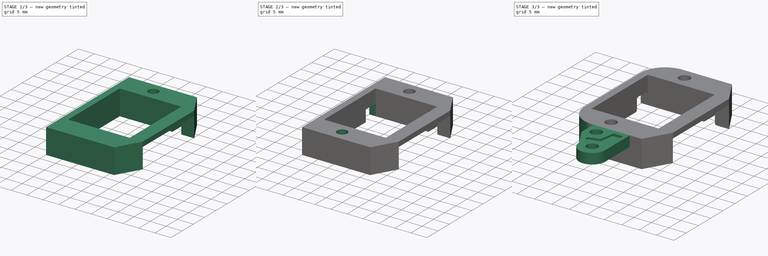
[diagram: build sequence overview — one tinted view per stage of 3, left to right]
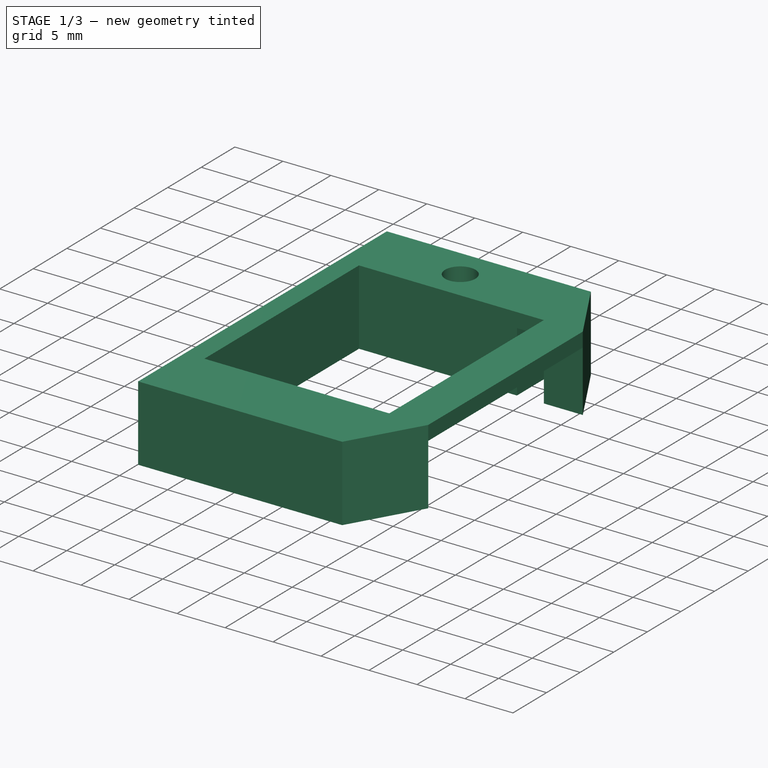
[diagram: stage 1 of 3 — iso view after this stage's code; geometry added in this stage tinted green]
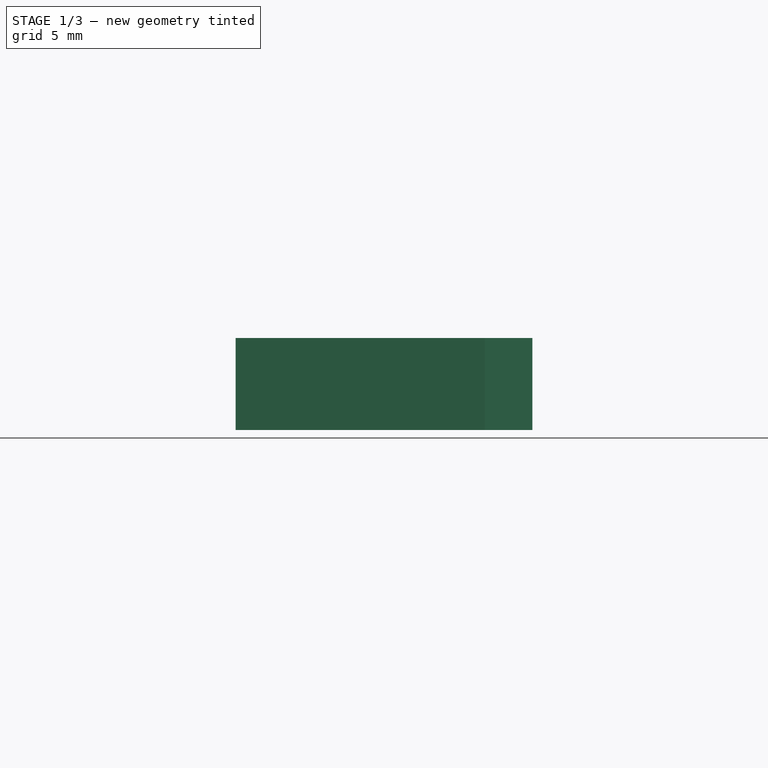
[diagram: stage 1 of 3 — front view after this stage's code; geometry added in this stage tinted green]
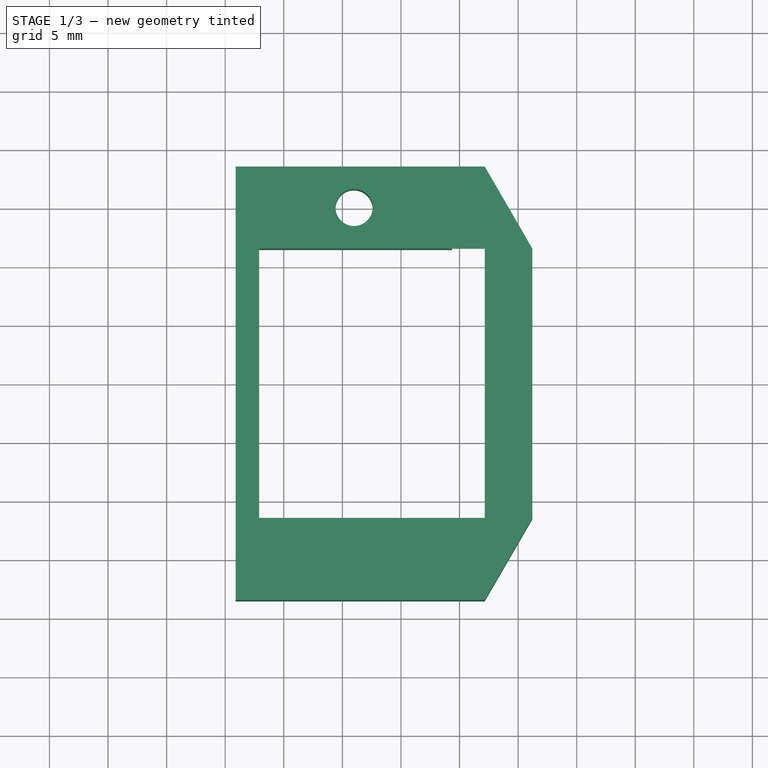
[diagram: stage 1 of 3 — top view after this stage's code; geometry added in this stage tinted green]
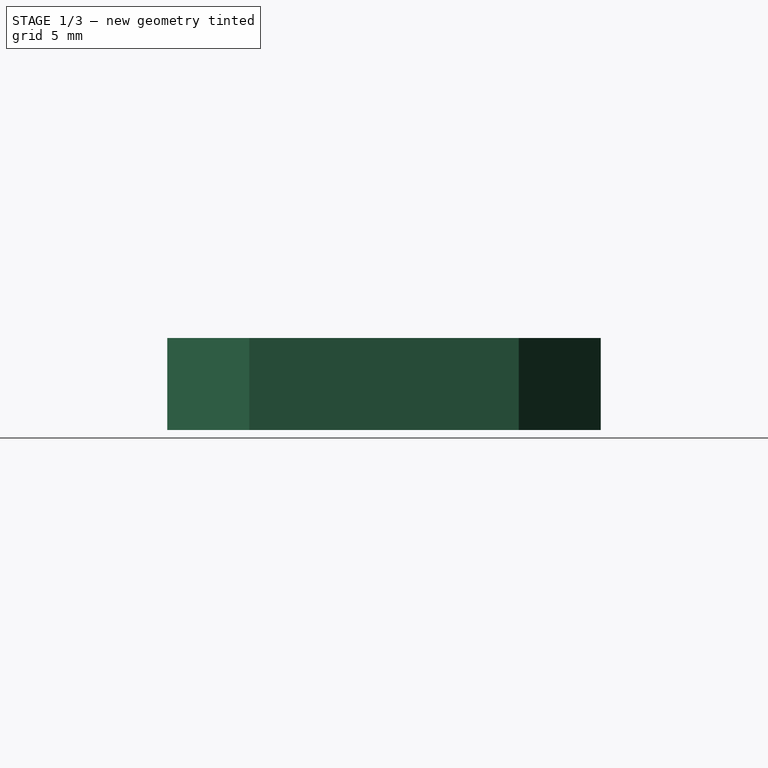
[diagram: stage 1 of 3 — right view after this stage's code; geometry added in this stage tinted green]
FCSTD DOCUMENT  (FreeCAD 0.20R29177 +426 (Git))
Label: l_sg90_holder
License: All rights reserved
LicenseURL: http://en.wikipedia.org/wiki/All_rights_reserved
objects: Sketcher::SketchObject×5, PartDesign::Pad×3, Spreadsheet::Sheet×2, PartDesign::Pocket×2, PartDesign::Fillet×2, PartDesign::Mirrored×1, PartDesign::Body×1
note: 21 computed .brp shape members not serialized (recipe doc carries the construction recipe); baked Part::Feature solids carry a one-line shape summary decoded from their .brp

FEATURE [Spreadsheet::Sheet] Spreadsheet  label="servo_data"
  cells = A1=Name; B1=Value; A2=sg90_base_xlen; B2(sg90_base_xlen)==23.81mm; E2=xlen is the base of the servo, from its back up to the box part; A3=sg90_base_ylen; B3(sg90_base_ylen)==22.6mm; E3=ylen is the box part from the bot of box to top (around where wire is mounted_; A4=sg90_base_zlen; B4(sg90_base_zlen)==12.3mm; E4=zlen is across; A5=sg90_base2lip_x; B5(sg90_base2lip_x)==16.66mm; E5=put the sg90 on its longest fattest side. That's how the xlen ylen and zlen are found; A6=sg90_lip_xlen; B6(sg90_lip_xlen)==2.4mm; A7=sg90_lip_ylen; B7(sg90_lip_ylen)==5mm; A8=sg90_lip2front_x; B8(sg90_lip2front_x)==4.06mm; A9=sg90_space; B9(sg90_space)==0.4mm; A10=sg90_hold_top_wall_thick; B10(sg90_hold_top_wall_thick)==2mm; A11=sg90_cable_thick; B11(sg90_cable_thick)==3.6mm; A12=sg90_hold_base_wall_thick; B12(sg90_hold_base_wall_thick)==1.5mm; A13=sg90_hold_xtra_grip_len; B13(sg90_hold_xtra_grip_len)==10mm; A14=sg90_hold_xtra_grip_thick; B14(sg90_hold_xtra_grip_thick)==3mm; A16=sg90_hold_gear2box_end; B16(sg90_hold_gear2box_end)==25mm
FEATURE [Sketcher::SketchObject] Sketch
  FullyConstrained = true
  MapMode = 5
  Support = -> [XY_Plane]
  expr: Constraints[10] = <<servo_data>>.sg90_base_xlen + <<servo_data>>.sg90_space
  expr: Constraints[11] = <<servo_data>>.sg90_base_ylen + <<servo_data>>.sg90_space
  expr: Constraints[18] = <<servo_data>>.sg90_base2lip_x - <<servo_data>>.sg90_space / 2
  expr: Constraints[46] = <<servo_data>>.sg90_lip_xlen + <<servo_data>>.sg90_space
  expr: Constraints[47] = <<servo_data>>.sg90_lip_ylen
  expr: Constraints[57] = Spreadsheet.sg90_hold_top_wall_thick
  expr: Constraints[61] = <<servo_data>>.sg90_hold_top_wall_thick
  expr: Constraints[65] = <<servo_data>>.sg90_hold_top_wall_thick
  expr: Constraints[79] = <<servo_data>>.sg90_lip2front_x
  sketch-geometry (30):
    g0: LineSegment StartX=-12.105 StartY=11.5 StartZ=0 EndX=-12.105 EndY=-11.5 EndZ=0
    g1: LineSegment StartX=-12.105 StartY=-11.5 StartZ=0 EndX=12.105 EndY=-11.5 EndZ=0
    g2: LineSegment StartX=12.105 StartY=-11.5 StartZ=0 EndX=12.105 EndY=11.5 EndZ=0
    g3: LineSegment StartX=12.105 StartY=11.5 StartZ=0 EndX=-12.105 EndY=11.5 EndZ=0
    g4: GeomPoint X=0 Y=0 Z=0
    g5: LineSegment StartX=4.355 StartY=11.5 StartZ=0 EndX=4.355 EndY=-11.5 EndZ=0
    g6: LineSegment StartX=4.355 StartY=0 StartZ=0 EndX=-12.105 EndY=0 EndZ=0
    g7: LineSegment StartX=4.355 StartY=-11.5 StartZ=0 EndX=-12.105 EndY=-11.5 EndZ=0
    g8: LineSegment StartX=-12.105 StartY=-11.5 StartZ=0 EndX=-12.105 EndY=11.5 EndZ=0
    g9: LineSegment StartX=-12.105 StartY=11.5 StartZ=0 EndX=4.355 EndY=11.5 EndZ=0
    g10: LineSegment StartX=4.355 StartY=11.5 StartZ=0 EndX=4.355 EndY=16.5 EndZ=0
    g11: LineSegment StartX=4.355 StartY=16.5 StartZ=0 EndX=7.155 EndY=16.5 EndZ=0
    g12: LineSegment StartX=7.155 StartY=16.5 StartZ=0 EndX=7.155 EndY=11.5 EndZ=0
    g13: LineSegment StartX=4.355 StartY=-11.5 StartZ=0 EndX=4.355 EndY=-16.5 EndZ=0
    g14: LineSegment StartX=4.355 StartY=-16.5 StartZ=0 EndX=7.155 EndY=-16.5 EndZ=0
    g15: LineSegment StartX=7.155 StartY=-16.5 StartZ=0 EndX=7.155 EndY=-11.5 EndZ=0
    g16: LineSegment StartX=7.155 StartY=11.5 StartZ=0 EndX=7.155 EndY=-11.5 EndZ=0
    g17: LineSegment StartX=4.355 StartY=0 StartZ=0 EndX=7.155 EndY=0 EndZ=0
    g18: LineSegment StartX=7.155 StartY=-18.5 StartZ=0 EndX=-14.105 EndY=-18.5 EndZ=0
    g19: LineSegment StartX=-14.105 StartY=18.5 StartZ=0 EndX=7.155 EndY=18.5 EndZ=0
    g20: LineSegment StartX=7.155 StartY=18.5 StartZ=0 EndX=7.155 EndY=16.5 EndZ=0
    g21: LineSegment StartX=7.155 StartY=-16.5 StartZ=0 EndX=7.155 EndY=-18.5 EndZ=0
    g22: LineSegment StartX=-14.105 StartY=18.5 StartZ=0 EndX=-14.105 EndY=-18.5 EndZ=0
    g23: LineSegment StartX=-12.105 StartY=0 StartZ=0 EndX=-14.105 EndY=0 EndZ=0
    g24: LineSegment StartX=-12.105 StartY=-11.5 StartZ=0 EndX=-12.105 EndY=-18.5 EndZ=0
    g25: LineSegment StartX=11.215 StartY=11.5 StartZ=0 EndX=7.155 EndY=11.5 EndZ=0
    g26: LineSegment StartX=11.215 StartY=-11.5 StartZ=0 EndX=7.155 EndY=-11.5 EndZ=0
    g27: LineSegment StartX=11.215 StartY=11.5 StartZ=0 EndX=11.215 EndY=-11.5 EndZ=0
    g28: LineSegment StartX=7.155 StartY=18.5 StartZ=0 EndX=11.215 EndY=11.5 EndZ=0
    g29: LineSegment StartX=11.215 StartY=-11.5 StartZ=0 EndX=7.155 EndY=-18.5 EndZ=0
  constraints (87):
    c: Coincident(g0,g1)
    c: Coincident(g1,g2)
    c: Coincident(g2,g3)
    c: Coincident(g3,g0)
    c: Horizontal(g1)
    c: Horizontal(g3)
    c: Vertical(g0)
    c: Vertical(g2)
    c: Symmetric(g1,g0,g4)
    c: Coincident(g4,g-1)
    c: DistanceX(g1,g1) = 24.21
    c: DistanceY(g2,g2) = 23
    c: PointOnObject(g5,g1)
    c: Vertical(g5)
    c: PointOnObject(g6,g5)
    c: PointOnObject(g6,g0)
    c: Horizontal(g6)
    c: PointOnObject(g6,g-1)
    c: DistanceX(g6,g6) = 16.46
    c: Coincident(g5,g7)
    c: Coincident(g7,g0)
    c: Coincident(g7,g8)
    c: Coincident(g8,g0)
    c: Coincident(g8,g9)
    c: Coincident(g9,g5)
    c: Coincident(g9,g10)
    c: Vertical(g10)
    c: Coincident(g10,g11)
    c: Horizontal(g11)
    c: Coincident(g11,g12)
    c: PointOnObject(g12,g3)
    c: Vertical(g12)
    c: Coincident(g7,g13)
    c: Vertical(g13)
    c: Coincident(g13,g14)
    c: Horizontal(g14)
    c: Coincident(g14,g15)
    c: PointOnObject(g15,g1)
    c: Vertical(g15)
    c: Coincident(g16,g12)
    c: Coincident(g16,g15)
    c: Vertical(g16)
    c: Coincident(g17,g6)
    c: PointOnObject(g17,g16)
    c: Horizontal(g17)
    c: Equal(g13,g10)
    c: DistanceX(g17,g17) = 2.8
    c: DistanceY(g10,g10) = 5
    c: Horizontal(g19)
    c: Coincident(g20,g11)
    c: Coincident(g21,g14)
    c: Vertical(g21)
    c: Vertical(g20)
    c: Horizontal(g18)
    c: Coincident(g22,g19)
    c: Coincident(g22,g18)
    c: Vertical(g22)
    c: DistanceY(g20,g20) = 2
    c: Coincident(g23,g6)
    c: PointOnObject(g23,g22)
    c: Horizontal(g23)
    c: DistanceX(g23,g23) = 2
    c: Coincident(g24,g7)
    c: PointOnObject(g24,g18)
    c: Vertical(g24)
    c: DistanceY(g21,g21) = 2
    c: DistanceY(g24,g24) = 7
    c: DistanceY(g22,g22) = 37  'outside_ylen'
    c: DistanceY(g12,g19) = 7  'curve_ylen'
    c: DistanceX(g23,g4) = 14.105  'back_wall_xlen_offset'
    c: Coincident(g19,g20)
    c: PointOnObject(g9,g3)
    c: Coincident(g18,g21)
    c: DistanceX(g15,g1) = 4.95  'front_pad'
    c: PointOnObject(g25,g3)
    c: PointOnObject(g26,g1)
    c: Coincident(g25,g12)
    c: Coincident(g26,g15)
    c: Vertical(g27)
    c: DistanceX(g25,g25) = 4.06
    c: Coincident(g25,g27)
    c: Coincident(g26,g27)
    c: Coincident(g28,g19)
    c: Coincident(g28,g25)
    c: Coincident(g29,g26)
    c: Coincident(g29,g18)
    c: DistanceX(g19,g25) = 25.32  'outside_xlen'
FEATURE [Spreadsheet::Sheet] Spreadsheet001  label="screw_data"
  cells = A1=Name; B1=Value; A2=m3_head_dia; B2(m3_head_dia)==5.5mm; A3=m3_screw_dia; B3(m3_screw_dia)==2.96mm; A5=m3_space; B5(m3_space)==0.2mm
FEATURE [PartDesign::Pad] Pad
  Direction = (0,0,1)
  Length = 6.35
  Length2 = 10
  Profile = -> Sketch
  ReferenceAxis = -> Sketch [N_Axis]
  Type = 0
  expr: Length = <<servo_data>>.sg90_base_zlen / 2 + <<servo_data>>.sg90_space / 2
FEATURE [Sketcher::SketchObject] Sketch001  label="side_panel"
  AttachmentOffset = pos=(0,0,6.35) rot=(0,0,1;0rad)
  FullyConstrained = true
  MapMode = 5
  Placement = pos=(0,0,6.35) rot=(0,0,1;0rad)
  Support = -> [XY_Plane]
  expr: .AttachmentOffset.Base.z = <<Pad>>.Length
  expr: Constraints[13] = Sketch.Constraints.outside_xlen
  expr: Constraints[28] = <<Sketch>>.Constraints.curve_ylen
  expr: Constraints[2] = Sketch.Constraints.back_wall_xlen_offset
  expr: Constraints[30] = <<servo_data>>.sg90_lip2front_x
  expr: Constraints[46] = <<servo_data>>.sg90_hold_top_wall_thick
  expr: Constraints[8] = Sketch.Constraints.outside_ylen
  sketch-geometry (17):
    g0: LineSegment StartX=0 StartY=0 StartZ=0 EndX=-14.105 EndY=0 EndZ=0
    g1: LineSegment StartX=-14.105 StartY=0 StartZ=0 EndX=-14.105 EndY=18.5 EndZ=0
    g2: LineSegment StartX=-14.105 StartY=0 StartZ=0 EndX=-14.105 EndY=-18.5 EndZ=0
    g3: LineSegment StartX=-14.105 StartY=18.5 StartZ=0 EndX=7.155 EndY=18.5 EndZ=0
    g4: LineSegment StartX=-14.105 StartY=0 StartZ=0 EndX=11.215 EndY=0 EndZ=0
    g5: LineSegment StartX=-14.105 StartY=-18.5 StartZ=0 EndX=7.155 EndY=-18.5 EndZ=0
    g6: LineSegment StartX=7.155 StartY=18.5 StartZ=0 EndX=7.155 EndY=-18.5 EndZ=0
    g7: LineSegment StartX=7.155 StartY=18.5 StartZ=0 EndX=11.215 EndY=11.5 EndZ=0
    g8: LineSegment StartX=7.155 StartY=-18.5 StartZ=0 EndX=11.215 EndY=-11.5 EndZ=0
    g9: LineSegment StartX=11.215 StartY=-11.5 StartZ=0 EndX=11.215 EndY=11.5 EndZ=0
    g10: LineSegment StartX=11.215 StartY=11.5 StartZ=0 EndX=7.155 EndY=11.5 EndZ=0
    g11: LineSegment StartX=7.155 StartY=11.5 StartZ=0 EndX=-12.105 EndY=11.5 EndZ=0
    g12: LineSegment StartX=-12.105 StartY=11.5 StartZ=0 EndX=-12.105 EndY=-11.5 EndZ=0
    g13: LineSegment StartX=-12.105 StartY=-11.5 StartZ=0 EndX=7.155 EndY=-11.5 EndZ=0
    g14: LineSegment StartX=7.155 StartY=-11.5 StartZ=0 EndX=7.155 EndY=11.5 EndZ=0
    g15: LineSegment StartX=7.155 StartY=-11.5 StartZ=0 EndX=11.215 EndY=-11.5 EndZ=0
    g16: LineSegment StartX=-14.105 StartY=0 StartZ=0 EndX=-12.105 EndY=0 EndZ=0
  constraints (47):
    c: Coincident(g0,g-1)
    c: PointOnObject(g0,g-1)
    c: DistanceX(g0,g0) = 14.105
    c: Coincident(g0,g1)
    c: Vertical(g1)
    c: Coincident(g1,g2)
    c: Vertical(g2)
    c: Equal(g2,g1)
    c: DistanceY(g2,g1) = 37
    c: Coincident(g3,g1)
    c: Horizontal(g3)
    c: Coincident(g4,g1)
    c: PointOnObject(g4,g-1)
    c: DistanceX(g4,g4) = 25.32
    c: Coincident(g5,g2)
    c: Horizontal(g5)
    c: Coincident(g6,g3)
    c: Coincident(g6,g5)
    c: Vertical(g6)
    c: Coincident(g7,g3)
    c: Coincident(g8,g5)
    c: Coincident(g9,g8)
    c: Coincident(g9,g7)
    c: Vertical(g9)
    c: Equal(g7,g8)
    c: Coincident(g10,g7)
    c: PointOnObject(g10,g6)
    c: Horizontal(g10)
    c: DistanceY(g10,g3) = 7
    c: PointOnObject(g4,g9)
    c: DistanceX(g10,g10) = 4.06
    c: Coincident(g10,g11)
    c: Horizontal(g11)
    c: Coincident(g11,g12)
    c: Vertical(g12)
    c: Coincident(g12,g13)
    c: Horizontal(g13)
    c: Coincident(g13,g14)
    c: Coincident(g14,g11)
    c: Coincident(g15,g13)
    c: Coincident(g15,g8)
    c: Horizontal(g15)
    c: Vertical(g14)
    c: Coincident(g16,g1)
    c: PointOnObject(g16,g12)
    c: Horizontal(g16)
    c: DistanceX(g1,g16) = 2
FEATURE [Sketcher::SketchObject] Sketch002  label="cable_hole"
  FullyConstrained = true
  MapMode = 5
  Placement = pos=(0,0,0) rot=(0.57735,0.57735,0.57735;2.0944rad)
  Support = -> [YZ_Plane]
  expr: Constraints[10] = <<servo_data>>.sg90_cable_thick + <<servo_data>>.sg90_space * 2
  expr: Constraints[11] = <<servo_data>>.sg90_cable_thick
  expr: Constraints[12] = (<<servo_data>>.sg90_base_ylen + <<servo_data>>.sg90_space) / 2
  sketch-geometry (5):
    g0: LineSegment StartX=7.1 StartY=3.6 StartZ=0 EndX=7.1 EndY=0 EndZ=0
    g1: LineSegment StartX=7.1 StartY=0 StartZ=0 EndX=11.5 EndY=0 EndZ=0
    g2: LineSegment StartX=11.5 StartY=0 StartZ=0 EndX=11.5 EndY=3.6 EndZ=0
    g3: LineSegment StartX=11.5 StartY=3.6 StartZ=0 EndX=7.1 EndY=3.6 EndZ=0
    g4: GeomPoint X=9.3 Y=1.8 Z=0
  constraints (13):
    c: Coincident(g0,g1)
    c: Coincident(g1,g2)
    c: Coincident(g2,g3)
    c: Coincident(g3,g0)
    c: Horizontal(g1)
    c: Horizontal(g3)
    c: Vertical(g0)
    c: Vertical(g2)
    c: Symmetric(g1,g0,g4)
    c: PointOnObject(g1,g-1)
    c: DistanceX(g1,g1) = 4.4
    c: DistanceY(g0,g0) = 3.6
    c: DistanceX(g-1,g1) = 11.5
FEATURE [Sketcher::SketchObject] Sketch003  label="m3_hole1"
  FullyConstrained = true
  MapMode = 5
  Support = -> [XY_Plane]
  expr: Constraints[10] = <<screw_data>>.m3_screw_dia + <<screw_data>>.m3_space
  expr: Constraints[13] = 4
  expr: Constraints[8] = <<Sketch>>.Constraints.outside_ylen / 2
  expr: Constraints[9] = <<Sketch>>.Constraints.curve_ylen
  sketch-geometry (5):
    g0: LineSegment StartX=-4 StartY=0 StartZ=0 EndX=-4 EndY=11.5 EndZ=0
    g1: LineSegment StartX=-4 StartY=11.5 StartZ=0 EndX=-4 EndY=15 EndZ=0
    g2: LineSegment StartX=-4 StartY=15 StartZ=0 EndX=-4 EndY=18.5 EndZ=0
    g3: Circle CenterX=-4 CenterY=15 CenterZ=0 NormalX=0 NormalY=0 NormalZ=1 AngleXU=0 Radius=1.58
    g4: LineSegment StartX=-4 StartY=0 StartZ=0 EndX=0 EndY=0 EndZ=0
  constraints (14):
    c: Coincident(g0,g1)
    c: Coincident(g2,g1)
    c: Equal(g2,g1)
    c: PointOnObject(g0,g-1)
    c: Vertical(g0)
    c: Vertical(g1)
    c: Vertical(g2)
    c: Coincident(g3,g1)
    c: DistanceY(g0,g2) = 18.5
    c: DistanceY(g0,g2) = 7
    c: Diameter(g3) = 3.16
    c: Coincident(g4,g0)
    c: Coincident(g4,g-1)
    c: DistanceX(g4,g4) = 4
FEATURE [PartDesign::Pad] Pad001
  BaseFeature = -> Pad
  Direction = (0,0,1)
  Length = 1.5
  Length2 = 10
  Profile = -> Sketch001
  ReferenceAxis = -> Sketch001 [N_Axis]
  Type = 0
  expr: Length = <<servo_data>>.sg90_hold_base_wall_thick
FEATURE [PartDesign::Pocket] Pocket  label="m3_hole"
  BaseFeature = -> Pad001
  Direction = (0,0,-1)
  Length = 5
  Length2 = 5
  Profile = -> Sketch003
  ReferenceAxis = -> Sketch003 [N_Axis]
  Reversed = true
  Type = 1
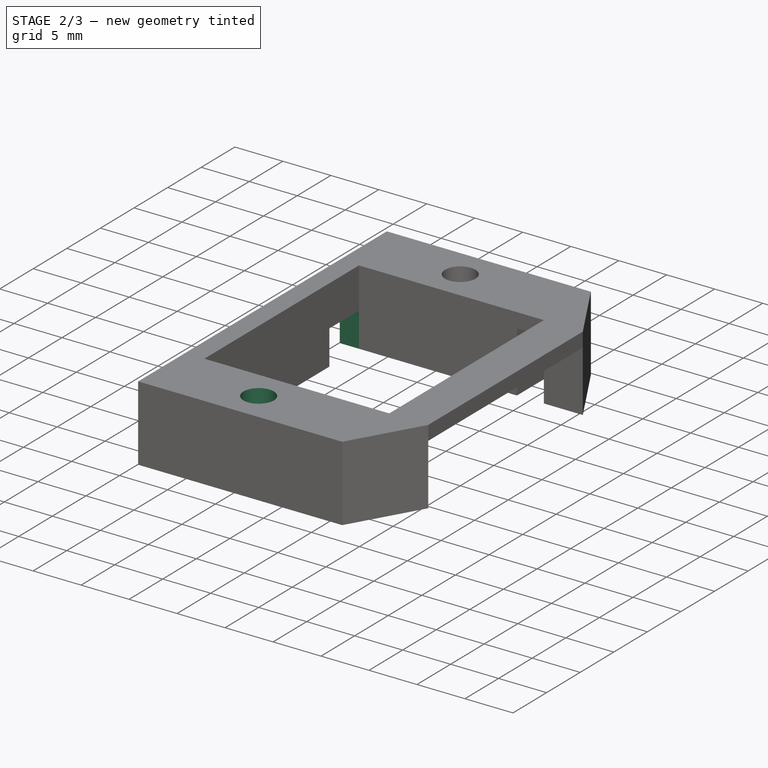
[diagram: stage 2 of 3 — iso view after this stage's code; geometry added in this stage tinted green]
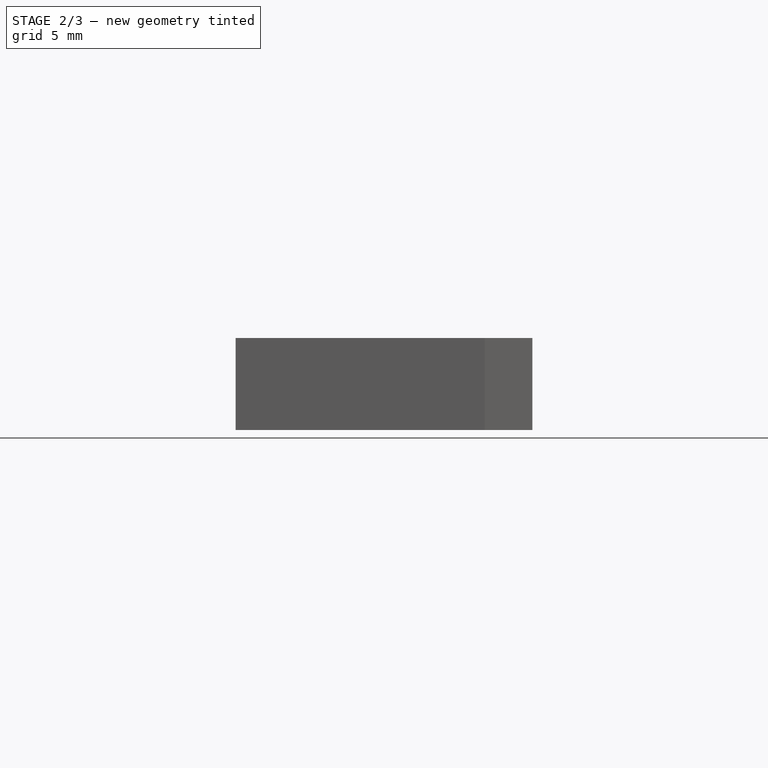
[diagram: stage 2 of 3 — front view after this stage's code; geometry added in this stage tinted green]
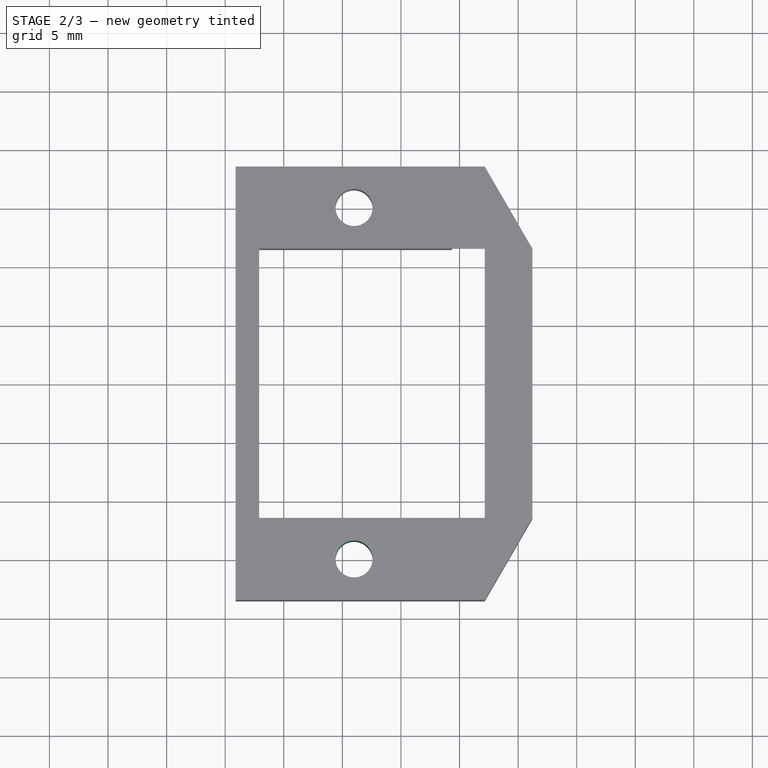
[diagram: stage 2 of 3 — top view after this stage's code; geometry added in this stage tinted green]
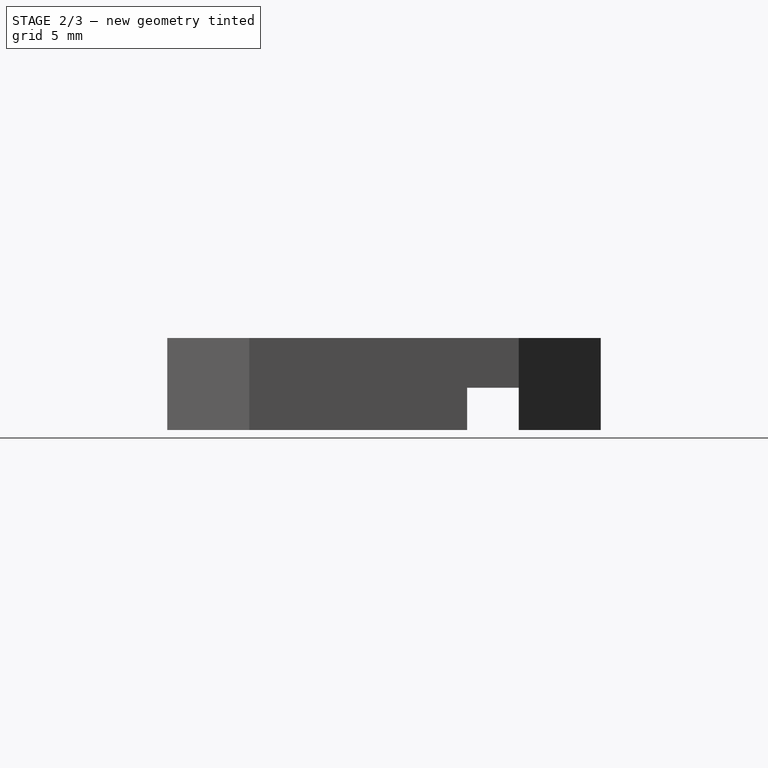
[diagram: stage 2 of 3 — right view after this stage's code; geometry added in this stage tinted green]
FEATURE [PartDesign::Mirrored] Mirrored
  BaseFeature = -> Pocket
  MirrorPlane = -> Sketch003 [H_Axis]
  Originals = -> [Pocket]
FEATURE [PartDesign::Pocket] Pocket001
  BaseFeature = -> Mirrored
  Direction = (-1,2e-16,-3e-16)
  Length = 5
  Length2 = 5
  Profile = -> Sketch002
  ReferenceAxis = -> Sketch002 [N_Axis]
  Type = 1
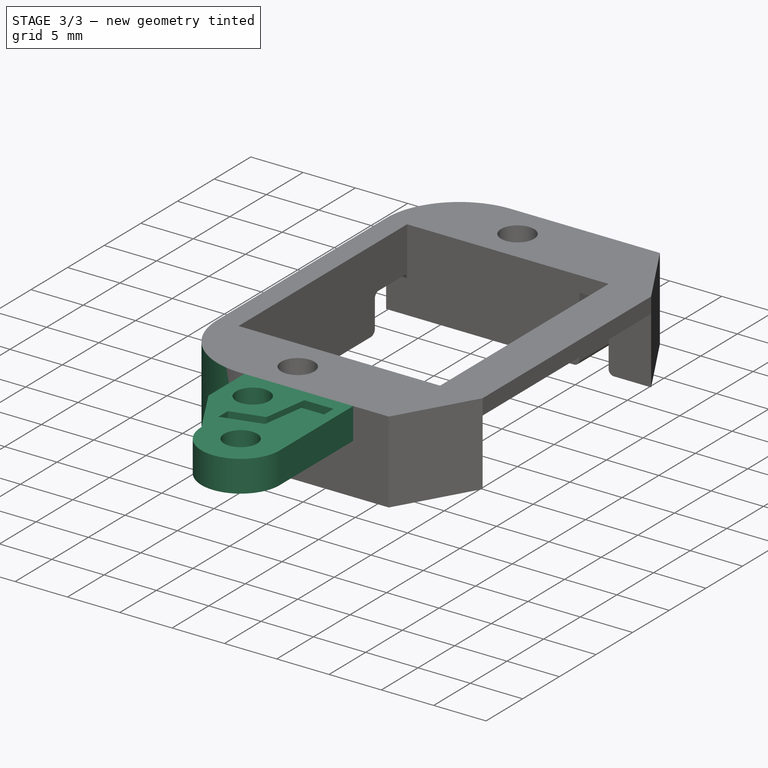
[diagram: stage 3 of 3 — iso view after this stage's code; geometry added in this stage tinted green]
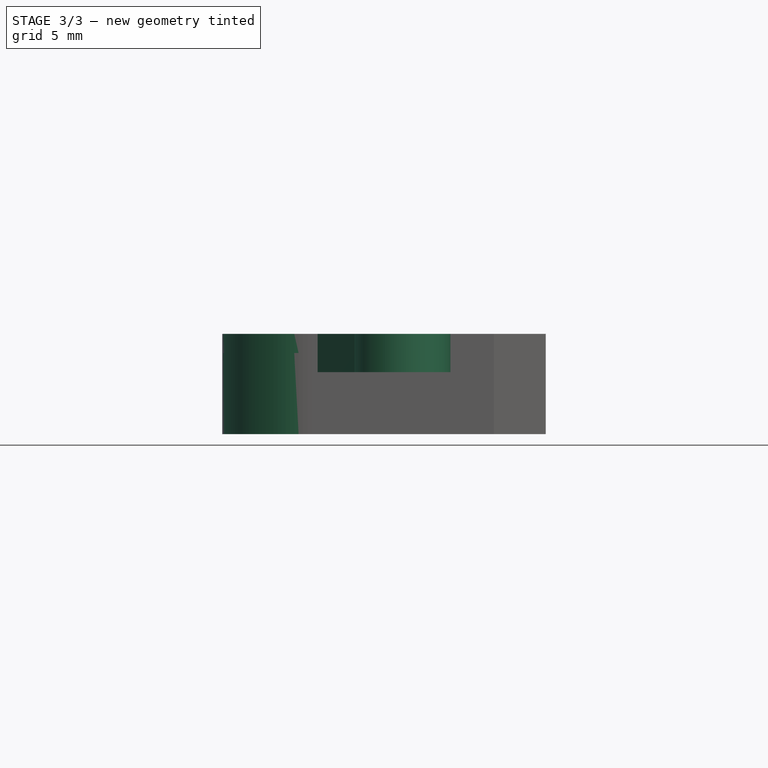
[diagram: stage 3 of 3 — front view after this stage's code; geometry added in this stage tinted green]
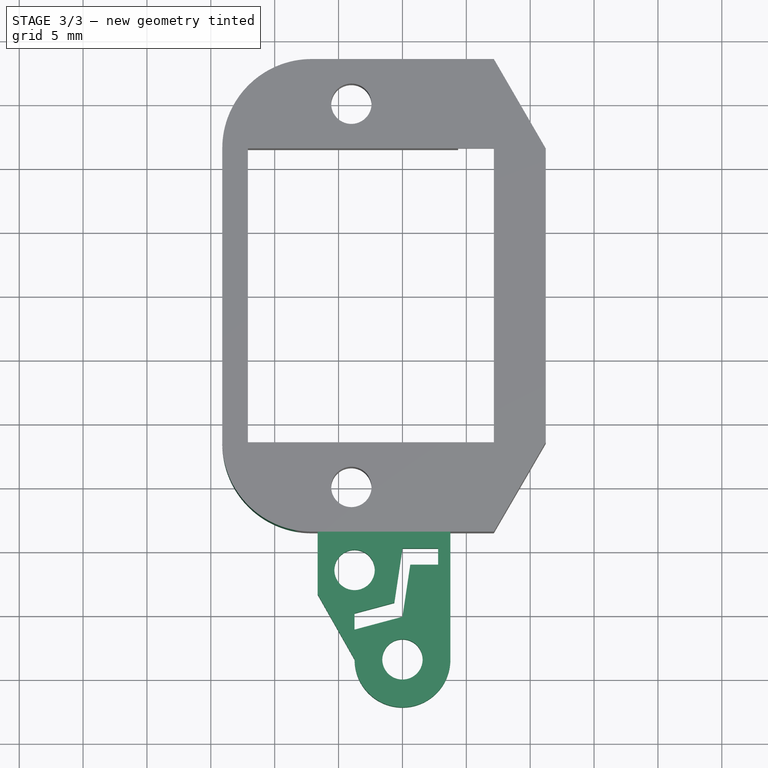
[diagram: stage 3 of 3 — top view after this stage's code; geometry added in this stage tinted green]
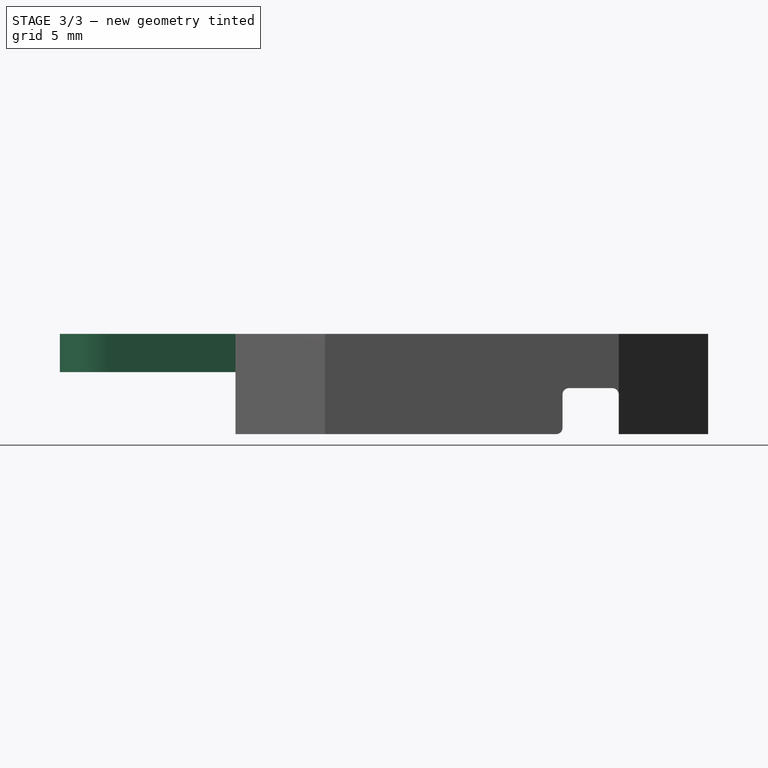
[diagram: stage 3 of 3 — right view after this stage's code; geometry added in this stage tinted green]
FEATURE [PartDesign::Fillet] Fillet
  Base = -> Pocket001 [Edge22,Edge37]
  BaseFeature = -> Pocket001
  Radius = 7
  SupportTransform = false
  UseAllEdges = false
FEATURE [PartDesign::Fillet] Fillet001
  Base = -> Fillet [Edge6,Edge28,Edge51,Edge87,Edge88,Edge89,Edge7,Edge9,Edge11,Edge12,Edge90]
  BaseFeature = -> Fillet
  Radius = 0.5
  SupportTransform = false
  UseAllEdges = false
FEATURE [Sketcher::SketchObject] Sketch004  label="grab_tag"
  AttachmentOffset = pos=(0,0,7.85) rot=(0,0,1;0rad)
  FullyConstrained = false
  MapMode = 5
  Placement = pos=(0,0,7.85) rot=(0,0,1;0rad)
  Support = -> [XY_Plane]
  expr: .AttachmentOffset.Base.z = <<Pad>>.Length + <<Pad001>>.Length
  expr: .Constraints.curve_xlen = <<screw_data>>.m3_head_dia + <<servo_data>>.sg90_hold_top_wall_thick
  expr: .Constraints.dia = <<screw_data>>.m3_screw_dia + <<screw_data>>.m3_space
  expr: .Constraints.l_cir_ylen = .Constraints.ylen * 0.3
  expr: .Constraints.xlen = 10.3911
  expr: Constraints[16] = <<Sketch>>.Constraints.outside_ylen / 2
  sketch-geometry (22):
    g0: LineSegment StartX=-6.6411 StartY=-18.5 StartZ=0 EndX=3.75 EndY=-18.5 EndZ=0
    g1: LineSegment StartX=3.75 StartY=-18.5 StartZ=0 EndX=3.75 EndY=-28.5 EndZ=0
    g2: ArcOfCircle CenterX=0 CenterY=-28.5 CenterZ=0 NormalX=0 NormalY=0 NormalZ=1 AngleXU=0 Radius=3.75 StartAngle=3.14159 EndAngle=6.28319
    g3: LineSegment StartX=-3.75 StartY=-28.5 StartZ=0 EndX=3.75 EndY=-28.5 EndZ=0
    g4: LineSegment StartX=0 StartY=-28.5 StartZ=0 EndX=0 EndY=-18.5 EndZ=0
    g5: Circle CenterX=0 CenterY=-28.5 CenterZ=0 NormalX=0 NormalY=0 NormalZ=1 AngleXU=0 Radius=1.58
    g6: LineSegment StartX=0 StartY=-18.5 StartZ=0 EndX=0 EndY=0 EndZ=0
    g7: LineSegment StartX=-3.75 StartY=-28.5 StartZ=0 EndX=-6.6411 EndY=-23.41 EndZ=0
    g8: LineSegment StartX=-6.6411 StartY=-23.41 StartZ=0 EndX=-6.6411 EndY=-18.5 EndZ=0
    g9: LineSegment StartX=-3.75 StartY=-28.5 StartZ=0 EndX=-3.75 EndY=-21.5 EndZ=0
    g10: LineSegment StartX=-3.75 StartY=-18.5 StartZ=0 EndX=-3.75 EndY=-21.5 EndZ=0
    g11: Circle CenterX=-3.75 CenterY=-21.5 CenterZ=0 NormalX=0 NormalY=0 NormalZ=1 AngleXU=0 Radius=1.58
    g12: LineSegment StartX=-3.75 StartY=-21.5 StartZ=0 EndX=-6.6411 EndY=-23.41 EndZ=0
    g13: LineSegment StartX=2.78824 StartY=-19.8058 StartZ=0 EndX=0 EndY=-19.8058 EndZ=0
    g14: LineSegment StartX=0 StartY=-19.8058 StartZ=0 EndX=-0.638352 EndY=-24.06 EndZ=0
    g15: LineSegment StartX=-0.638352 StartY=-24.06 StartZ=0 EndX=-3.75 EndY=-24.8937 EndZ=0
    g16: LineSegment StartX=-3.75 StartY=-24.8937 StartZ=0 EndX=-3.75 EndY=-26.1704 EndZ=0
    g17: LineSegment StartX=-3.75 StartY=-26.1704 StartZ=0 EndX=0 EndY=-25.1656 EndZ=0
    g18: LineSegment StartX=0 StartY=-25.1656 StartZ=0 EndX=0.612686 EndY=-21.0826 EndZ=0
    g19: LineSegment StartX=0.612686 StartY=-21.0826 StartZ=0 EndX=2.78824 EndY=-21.0826 EndZ=0
    g20: LineSegment StartX=2.78824 StartY=-21.0826 StartZ=0 EndX=2.78824 EndY=-19.8058 EndZ=0
    g21: LineSegment StartX=0 StartY=-25.1656 StartZ=0 EndX=-0.638352 EndY=-24.06 EndZ=0
  constraints (57):
    c: Horizontal(g0)
    c: Coincident(g0,g1)
    c: Vertical(g1)
    c: Coincident(g2,g1)
    c: Coincident(g3,g1)
    c: Horizontal(g3)
    c: PointOnObject(g2,g3)
    c: Coincident(g4,g2)
    c: PointOnObject(g4,g0)
    c: Vertical(g4)
    c: Coincident(g5,g2)
    c: Diameter(g5) = 3.16  'dia'
    c: DistanceX(g3,g3) = 7.5  'curve_xlen'
    c: PointOnObject(g4,g-2)
    c: Coincident(g6,g4)
    c: Coincident(g6,g-1)
    c: DistanceY(g6,g6) = 18.5
    c: Coincident(g2,g3)
    c: DistanceY(g2,g4) = 10  'ylen'
    c: Coincident(g7,g2)
    c: Coincident(g8,g7)
    c: Coincident(g8,g0)
    c: Coincident(g9,g2)
    c: Vertical(g9)
    c: PointOnObject(g10,g0)
    c: Coincident(g10,g9)
    c: Vertical(g10)
    c: Coincident(g11,g9)
    c: Equal(g5,g11)
    c: Coincident(g12,g11)
    c: Coincident(g12,g7)
    c: DistanceY(g10,g10) = 3  'l_cir_ylen'
    c: PointOnObject(g13,g4)
    c: Horizontal(g13)
    c: Coincident(g13,g14)
    c: Coincident(g14,g15)
    c: PointOnObject(g15,g9)
    c: Coincident(g15,g16)
    c: PointOnObject(g16,g9)
    c: Coincident(g16,g17)
    c: PointOnObject(g17,g4)
    c: Coincident(g17,g18)
    c: Coincident(g18,g19)
    c: Horizontal(g19)
    c: Coincident(g19,g20)
    c: Coincident(g20,g13)
    c: Vertical(g20)
    c: Coincident(g21,g17)
    c: Coincident(g21,g14)
    c: Angle(g4,g21) = 0.523599
    c: Parallel(g18,g14)
    c: Parallel(g15,g17)
    c: Equal(g20,g21)
    c: Equal(g21,g16)
    c: Vertical(g8)
    c: DistanceX(g0,g0) = 10.3911  'xlen'
    c: DistanceY(g8,g8) = 4.91  'side_start_xlen'
FEATURE [PartDesign::Pad] Pad002
  BaseFeature = -> Fillet001
  Direction = (0,0,1)
  Length = 3
  Length2 = 10
  Profile = -> Sketch004
  ReferenceAxis = -> Sketch004 [N_Axis]
  Reversed = true
  Type = 0
  expr: Length = <<servo_data>>.sg90_hold_xtra_grip_thick
FEATURE [PartDesign::Body] Body
  Group = -> [Sketch,Pad,Sketch001,Sketch002,Sketch003,Pad001,Pocket,Mirrored,Pocket001,Fillet,Fillet001,Sketch004,Pad002]
  Origin = -> Origin
  Tip = -> Pad002
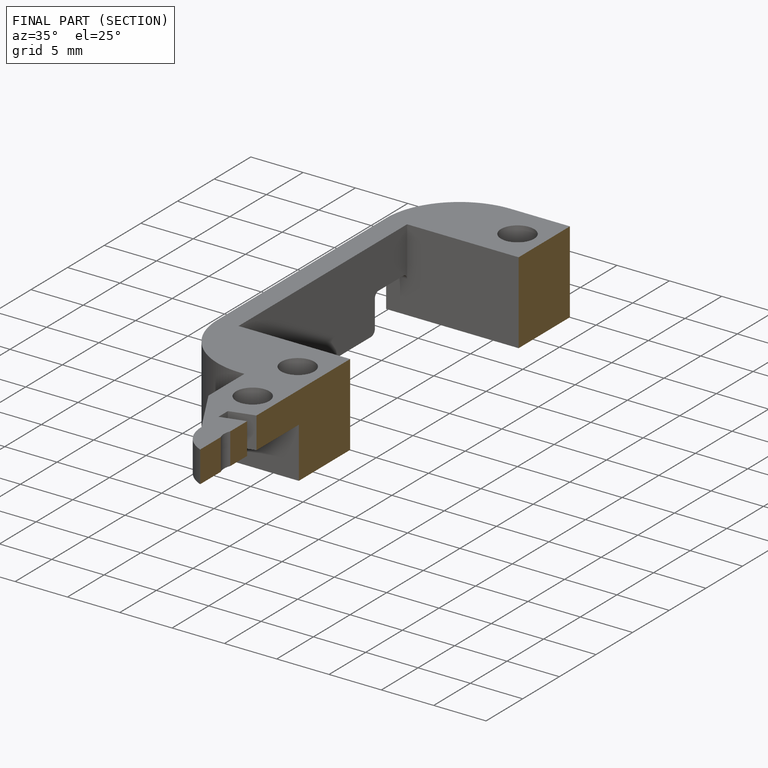
[diagram: finished part — half-section view (interior)]
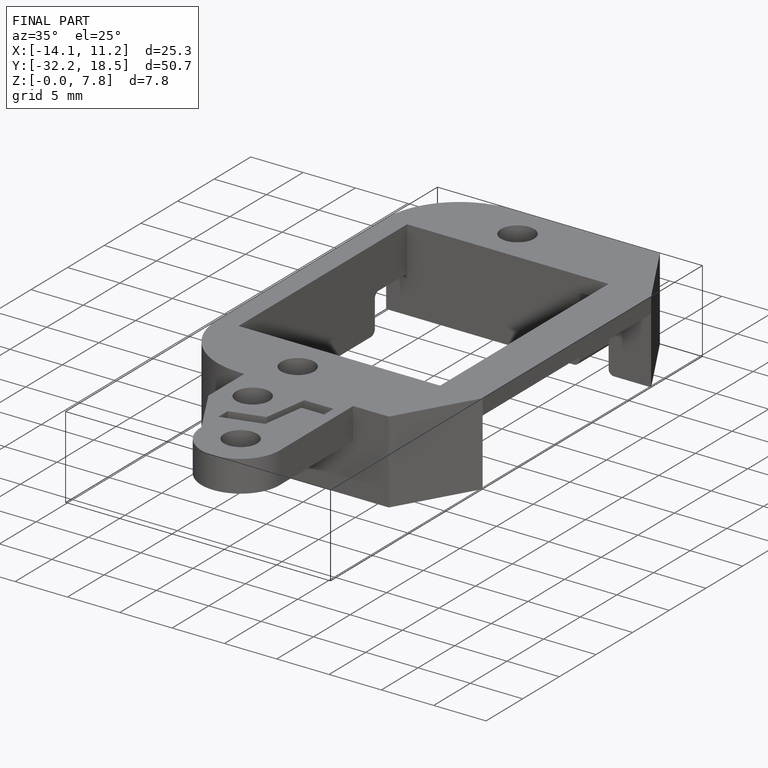
[diagram: finished part — iso view with bounding-box wireframe]
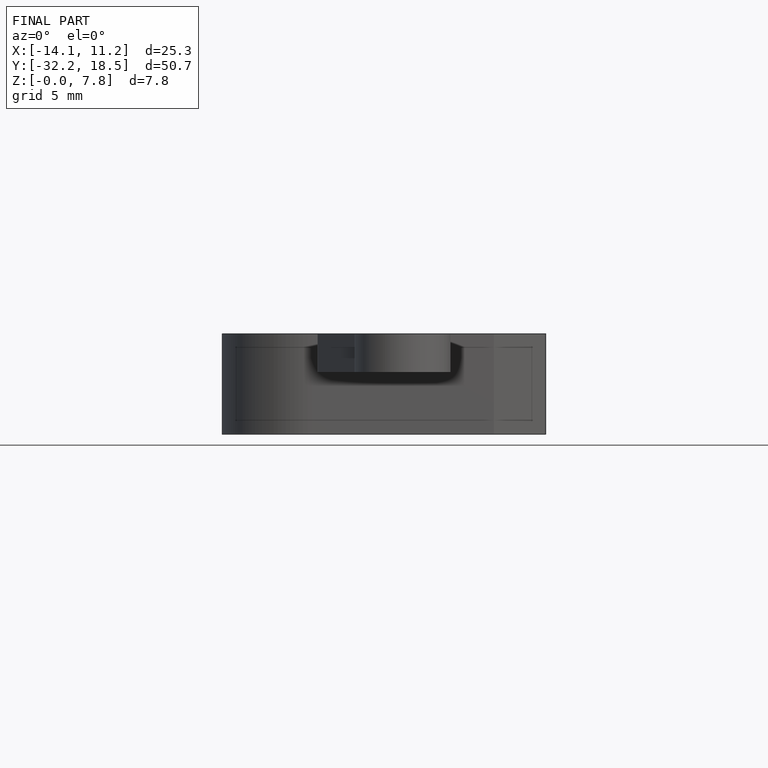
[diagram: finished part — front view with bounding-box wireframe]
